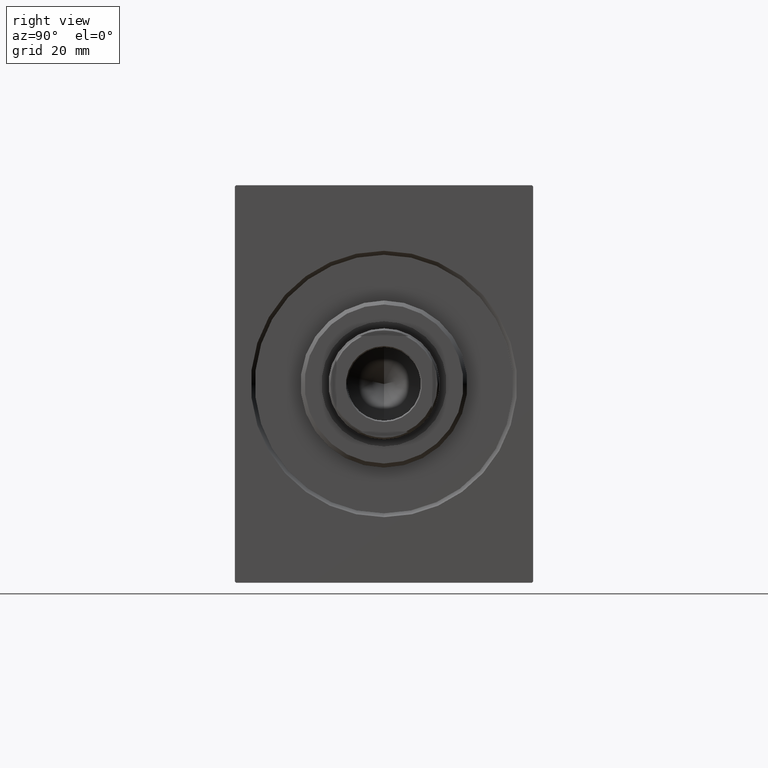
[diagram: clean part render]
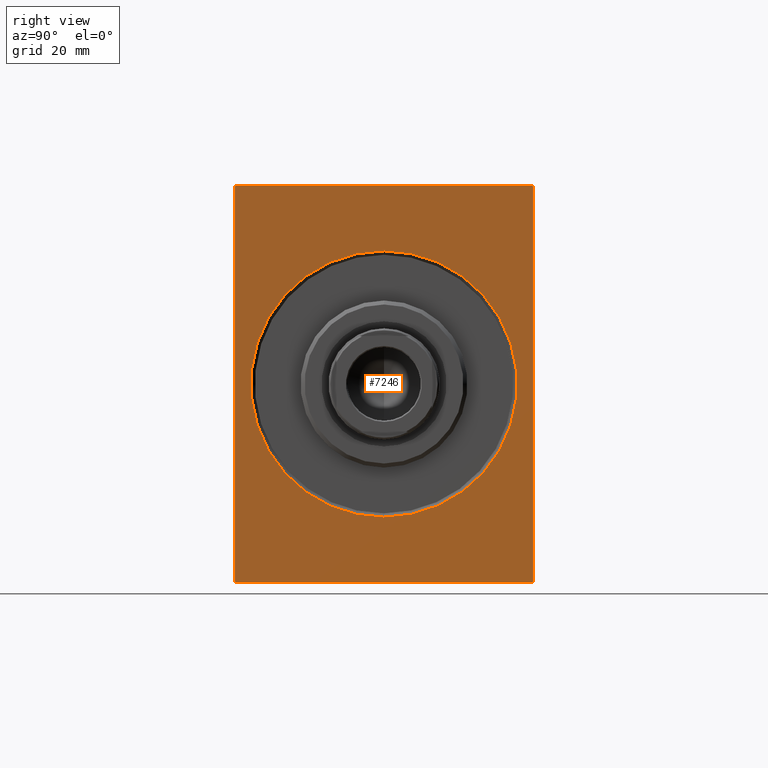
[diagram: same view with one face highlighted and labeled with its STEP entity id]
A machine part, right view. The second image highlights one B-rep face of the part: STEP entity #7246.
In plain terms, the highlighted planar face has unit normal (-1, 0, 0).
Its self-contained STEP definition (entity closure, byte-faithful):
#54 = EDGE_CURVE ( 'NONE', #20970, #705, #4898, .T. ) ;
#334 = EDGE_CURVE ( 'NONE', #10569, #34846, #21275, .T. ) ;
#705 = VERTEX_POINT ( 'NONE', #9111 ) ;
#1306 = CARTESIAN_POINT ( 'NONE',  ( 0.000000000000000000, -37.20000000000000284, -50.00000000000001421 ) ) ;
#1383 = VERTEX_POINT ( 'NONE', #35899 ) ;
#1443 = VERTEX_POINT ( 'NONE', #1306 ) ;
#1598 = DIRECTION ( 'NONE',  ( 0.000000000000000000, 0.000000000000000000, -1.000000000000000000 ) ) ;
#2257 = ORIENTED_EDGE ( 'NONE', *, *, #19295, .F. ) ;
#2441 = VERTEX_POINT ( 'NONE', #8564 ) ;
#3530 = DIRECTION ( 'NONE',  ( 1.000000000000000000, 0.000000000000000000, 0.000000000000000000 ) ) ;
#4222 = DIRECTION ( 'NONE',  ( 0.000000000000000000, -1.387778780781445182E-16, 1.000000000000000000 ) ) ;
#4797 = CARTESIAN_POINT ( 'NONE',  ( 0.000000000000000000, -37.50000000000000000, -49.70000000000002416 ) ) ;
#4864 = CARTESIAN_POINT ( 'NONE',  ( 0.000000000000000000, 0.000000000000000000, 0.000000000000000000 ) ) ;
#4898 = LINE ( 'NONE', #38366, #34032 ) ;
#5438 = CARTESIAN_POINT ( 'NONE',  ( 0.000000000000000000, -37.19999999999999574, 50.00000000000000000 ) ) ;
#6238 = ORIENTED_EDGE ( 'NONE', *, *, #35842, .F. ) ;
#6352 = CARTESIAN_POINT ( 'NONE',  ( 0.000000000000000000, -37.20000000000000284, -50.00000000000001421 ) ) ;
#6520 = EDGE_CURVE ( 'NONE', #42487, #26926, #30703, .T. ) ;
#7001 = LINE ( 'NONE', #31206, #38446 ) ;
#7246 = ADVANCED_FACE ( 'NONE', ( #22431, #12582 ), #25933, .F. ) ;
#7498 = LINE ( 'NONE', #20856, #9323 ) ;
#7825 = DIRECTION ( 'NONE',  ( 0.000000000000000000, -1.000000000000000000, -1.850371707708594563E-16 ) ) ;
#8267 = DIRECTION ( 'NONE',  ( 0.000000000000000000, 1.000000000000000000, 9.251858538542970348E-17 ) ) ;
#8454 = ORIENTED_EDGE ( 'NONE', *, *, #20630, .T. ) ;
#8564 = CARTESIAN_POINT ( 'NONE',  ( 0.000000000000000000, 37.49999999999999289, 49.70000000000003126 ) ) ;
#9111 = CARTESIAN_POINT ( 'NONE',  ( 0.000000000000000000, 37.20000000000001705, -50.00000000000000711 ) ) ;
#9167 = EDGE_CURVE ( 'NONE', #1443, #705, #11993, .T. ) ;
#9323 = VECTOR ( 'NONE', #4222, 1000.000000000000000 ) ;
#10417 = DIRECTION ( 'NONE',  ( -0.000000000000000000, 0.7071067811865393571, -0.7071067811865556774 ) ) ;
#10536 = CARTESIAN_POINT ( 'NONE',  ( 0.000000000000000000, 0.000000000000000000, 0.000000000000000000 ) ) ;
#10569 = VERTEX_POINT ( 'NONE', #23205 ) ;
#10860 = EDGE_LOOP ( 'NONE', ( #23713, #37044 ) ) ;
#10965 = DIRECTION ( 'NONE',  ( 0.000000000000000000, 0.000000000000000000, -1.000000000000000000 ) ) ;
#11600 = LINE ( 'NONE', #31914, #37446 ) ;
#11993 = LINE ( 'NONE', #15494, #27278 ) ;
#12338 = ORIENTED_EDGE ( 'NONE', *, *, #54, .T. ) ;
#12582 = FACE_OUTER_BOUND ( 'NONE', #36742, .T. ) ;
#13070 = ORIENTED_EDGE ( 'NONE', *, *, #9167, .F. ) ;
#13434 = EDGE_CURVE ( 'NONE', #26926, #42487, #30766, .T. ) ;
#13712 = ORIENTED_EDGE ( 'NONE', *, *, #334, .T. ) ;
#14533 = EDGE_CURVE ( 'NONE', #1443, #29239, #19262, .T. ) ;
#14638 = AXIS2_PLACEMENT_3D ( 'NONE', #4864, #31546, #1598 ) ;
#15494 = CARTESIAN_POINT ( 'NONE',  ( 0.000000000000000000, -37.50000000000000000, -50.00000000000001421 ) ) ;
#15951 = ORIENTED_EDGE ( 'NONE', *, *, #14533, .T. ) ;
#18075 = EDGE_CURVE ( 'NONE', #20970, #2441, #7498, .T. ) ;
#18462 = DIRECTION ( 'NONE',  ( 0.000000000000000000, -0.7071067811865556774, -0.7071067811865393571 ) ) ;
#18617 = VECTOR ( 'NONE', #10417, 1000.000000000000000 ) ;
#19262 = LINE ( 'NONE', #6352, #39855 ) ;
#19295 = EDGE_CURVE ( 'NONE', #10569, #29239, #11600, .T. ) ;
#20054 = VECTOR ( 'NONE', #34606, 1000.000000000000000 ) ;
#20310 = AXIS2_PLACEMENT_3D ( 'NONE', #10536, #3530, #10965 ) ;
#20630 = EDGE_CURVE ( 'NONE', #1383, #2441, #27264, .T. ) ;
#20856 = CARTESIAN_POINT ( 'NONE',  ( 0.000000000000000000, 37.50000000000000711, -50.00000000000000711 ) ) ;
#20970 = VERTEX_POINT ( 'NONE', #26945 ) ;
#21275 = LINE ( 'NONE', #28248, #20054 ) ;
#21418 = CARTESIAN_POINT ( 'NONE',  ( 0.000000000000000000, 4.102566777143632196E-15, -33.49999999999998579 ) ) ;
#21669 = AXIS2_PLACEMENT_3D ( 'NONE', #39262, #30919, #30691 ) ;
#22431 = FACE_BOUND ( 'NONE', #10860, .T. ) ;
#23205 = CARTESIAN_POINT ( 'NONE',  ( 0.000000000000000000, -37.50000000000000000, 49.70000000000000995 ) ) ;
#23713 = ORIENTED_EDGE ( 'NONE', *, *, #13434, .T. ) ;
#24934 = DIRECTION ( 'NONE',  ( 0.000000000000000000, 0.000000000000000000, -1.000000000000000000 ) ) ;
#25933 = PLANE ( 'NONE',  #21669 ) ;
#26926 = VERTEX_POINT ( 'NONE', #32129 ) ;
#26945 = CARTESIAN_POINT ( 'NONE',  ( 0.000000000000000000, 37.50000000000000711, -49.70000000000003126 ) ) ;
#27264 = LINE ( 'NONE', #37325, #18617 ) ;
#27278 = VECTOR ( 'NONE', #8267, 1000.000000000000000 ) ;
#28248 = CARTESIAN_POINT ( 'NONE',  ( 0.000000000000000000, -37.50000000000000000, 49.70000000000000995 ) ) ;
#28760 = ORIENTED_EDGE ( 'NONE', *, *, #18075, .F. ) ;
#29239 = VERTEX_POINT ( 'NONE', #4797 ) ;
#30691 = DIRECTION ( 'NONE',  ( 0.000000000000000000, 0.000000000000000000, -1.000000000000000000 ) ) ;
#30703 = CIRCLE ( 'NONE', #14638, 33.49999999999998579 ) ;
#30766 = CIRCLE ( 'NONE', #20310, 33.49999999999998579 ) ;
#30919 = DIRECTION ( 'NONE',  ( 1.000000000000000000, 0.000000000000000000, 0.000000000000000000 ) ) ;
#31206 = CARTESIAN_POINT ( 'NONE',  ( 0.000000000000000000, 37.49999999999999289, 50.00000000000001421 ) ) ;
#31546 = DIRECTION ( 'NONE',  ( 1.000000000000000000, 0.000000000000000000, 0.000000000000000000 ) ) ;
#31914 = CARTESIAN_POINT ( 'NONE',  ( 0.000000000000000000, -37.50000000000000000, 50.00000000000000000 ) ) ;
#32129 = CARTESIAN_POINT ( 'NONE',  ( 0.000000000000000000, 0.000000000000000000, 33.49999999999998579 ) ) ;
#34032 = VECTOR ( 'NONE', #18462, 1000.000000000000000 ) ;
#34606 = DIRECTION ( 'NONE',  ( -0.000000000000000000, 0.7071067811865556774, 0.7071067811865393571 ) ) ;
#34846 = VERTEX_POINT ( 'NONE', #5438 ) ;
#35842 = EDGE_CURVE ( 'NONE', #1383, #34846, #7001, .T. ) ;
#35899 = CARTESIAN_POINT ( 'NONE',  ( 0.000000000000000000, 37.20000000000000995, 50.00000000000001421 ) ) ;
#36084 = DIRECTION ( 'NONE',  ( -0.000000000000000000, -0.7071067811865474617, 0.7071067811865474617 ) ) ;
#36742 = EDGE_LOOP ( 'NONE', ( #6238, #8454, #28760, #12338, #13070, #15951, #2257, #13712 ) ) ;
#37044 = ORIENTED_EDGE ( 'NONE', *, *, #6520, .T. ) ;
#37325 = CARTESIAN_POINT ( 'NONE',  ( 0.000000000000000000, 37.20000000000000995, 50.00000000000001421 ) ) ;
#37446 = VECTOR ( 'NONE', #24934, 1000.000000000000000 ) ;
#38366 = CARTESIAN_POINT ( 'NONE',  ( 0.000000000000000000, 37.50000000000000711, -49.70000000000003126 ) ) ;
#38446 = VECTOR ( 'NONE', #7825, 1000.000000000000000 ) ;
#39262 = CARTESIAN_POINT ( 'NONE',  ( 0.000000000000000000, 0.000000000000000000, 0.000000000000000000 ) ) ;
#39855 = VECTOR ( 'NONE', #36084, 1000.000000000000114 ) ;
#42487 = VERTEX_POINT ( 'NONE', #21418 ) ;